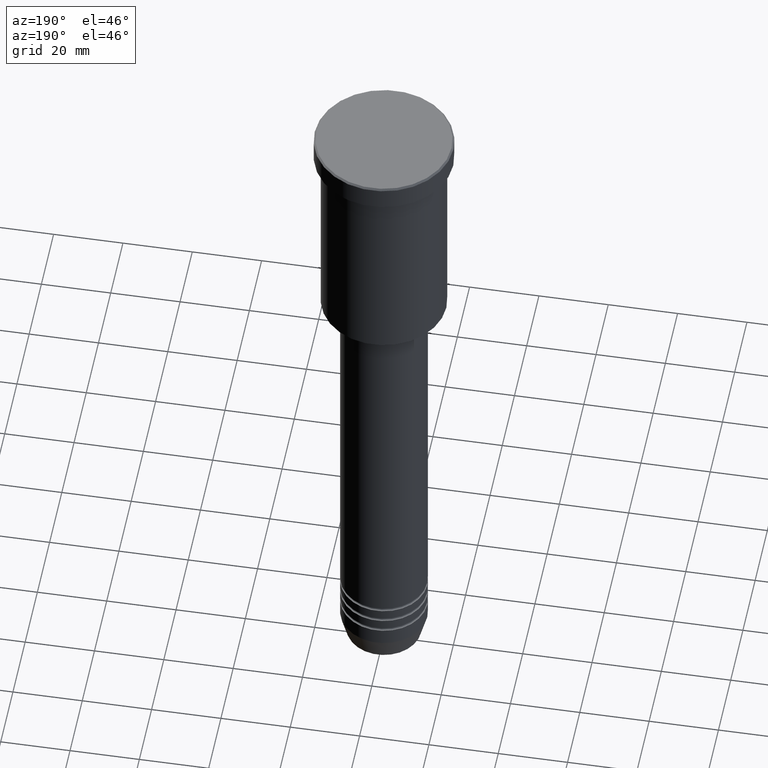
[diagram: clean part render]
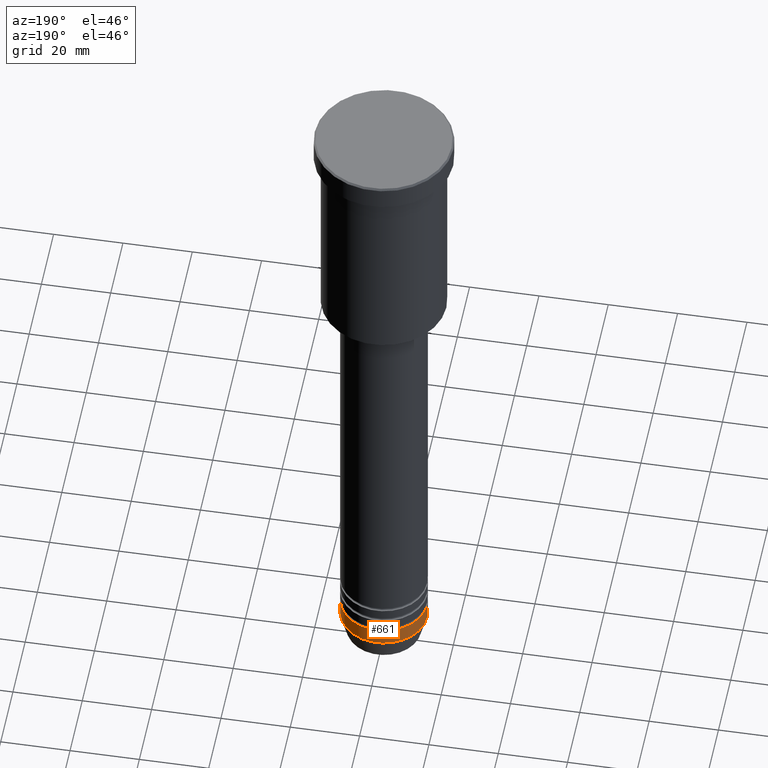
[diagram: same view with one face highlighted and labeled with its STEP entity id]
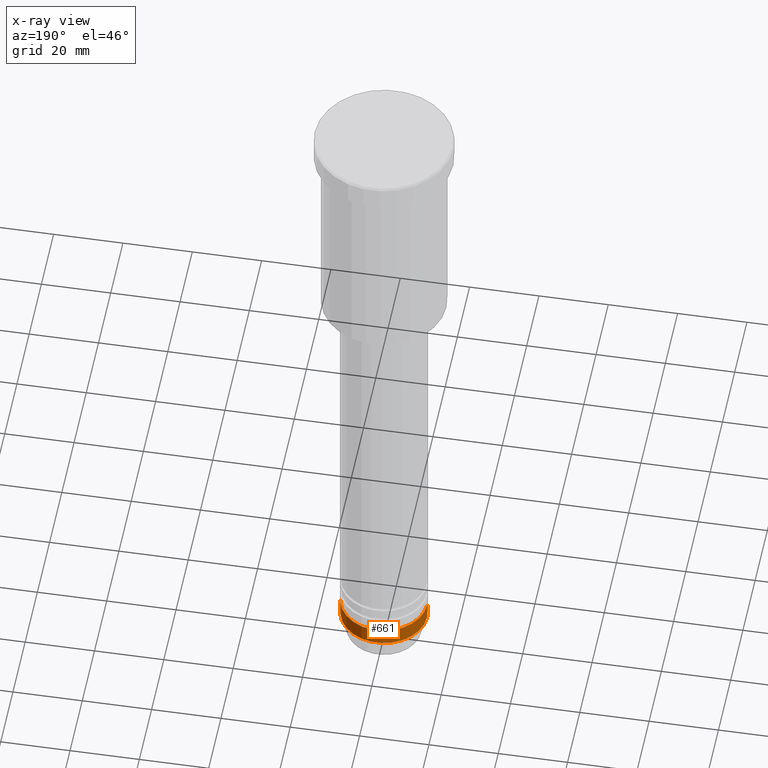
[diagram: x-ray of the same camera — body ghosted, the highlighted face saturated]
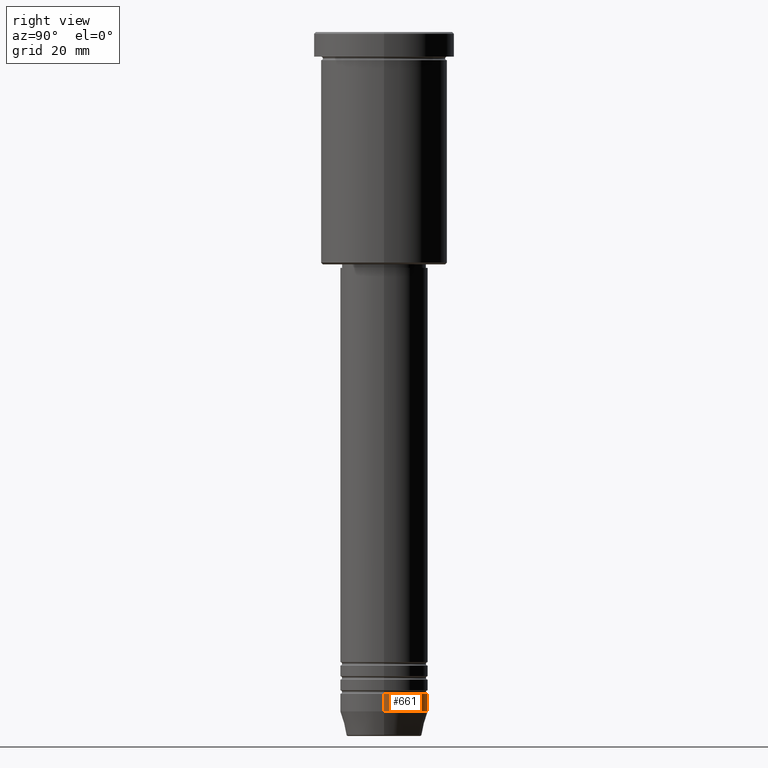
[diagram: same view with one face highlighted and labeled with its STEP entity id]
A machine part, auxiliary view. The second image highlights one B-rep face of the part: STEP entity #661.
The next image is the same camera in x-ray: the body ghosted, the highlighted face saturated — about 0% of this face is hidden behind the body in this view.
A second angle (right view) of the same face is appended — the face is thin or edge-on in the first view.
In plain terms, the highlighted cylindrical surface (partial cylindrical patch) has radius 12.5 mm, axis along (-0, -0, 1).
Its self-contained STEP definition (entity closure, byte-faithful):
#6 = AXIS2_PLACEMENT_3D ( 'NONE', #957, #1109, #1037 ) ;
#7 = DIRECTION ( 'NONE',  ( 1.000000000000000000, 0.000000000000000000, 0.000000000000000000 ) ) ;
#25 = EDGE_CURVE ( 'NONE', #1125, #701, #567, .T. ) ;
#40 = VERTEX_POINT ( 'NONE', #107 ) ;
#107 = CARTESIAN_POINT ( 'NONE',  ( 12.50000000000000000, 0.000000000000000000, -188.0000000000000284 ) ) ;
#111 = CYLINDRICAL_SURFACE ( 'NONE', #6, 12.50000000000000000 ) ;
#116 = FACE_OUTER_BOUND ( 'NONE', #526, .T. ) ;
#178 = DIRECTION ( 'NONE',  ( -0.000000000000000000, -0.000000000000000000, 1.000000000000000000 ) ) ;
#198 = VECTOR ( 'NONE', #232, 1000.000000000000000 ) ;
#232 = DIRECTION ( 'NONE',  ( -0.000000000000000000, -0.000000000000000000, 1.000000000000000000 ) ) ;
#247 = ORIENTED_EDGE ( 'NONE', *, *, #991, .T. ) ;
#451 = DIRECTION ( 'NONE',  ( -0.000000000000000000, -0.000000000000000000, 1.000000000000000000 ) ) ;
#479 = EDGE_CURVE ( 'NONE', #40, #701, #1064, .T. ) ;
#482 = VERTEX_POINT ( 'NONE', #1089 ) ;
#502 = AXIS2_PLACEMENT_3D ( 'NONE', #532, #451, #547 ) ;
#526 = EDGE_LOOP ( 'NONE', ( #247, #1017, #590, #681 ) ) ;
#532 = CARTESIAN_POINT ( 'NONE',  ( 0.000000000000000000, 0.000000000000000000, -193.0000000000000284 ) ) ;
#547 = DIRECTION ( 'NONE',  ( 1.000000000000000000, 0.000000000000000000, 0.000000000000000000 ) ) ;
#567 = LINE ( 'NONE', #668, #870 ) ;
#585 = CARTESIAN_POINT ( 'NONE',  ( -12.50000000000000000, 1.530808498934191521E-15, -188.0000000000000284 ) ) ;
#590 = ORIENTED_EDGE ( 'NONE', *, *, #479, .F. ) ;
#661 = ADVANCED_FACE ( 'NONE', ( #116 ), #111, .T. ) ;
#668 = CARTESIAN_POINT ( 'NONE',  ( -12.50000000000000000, 1.530808498934191521E-15, 0.000000000000000000 ) ) ;
#681 = ORIENTED_EDGE ( 'NONE', *, *, #860, .F. ) ;
#701 = VERTEX_POINT ( 'NONE', #585 ) ;
#860 = EDGE_CURVE ( 'NONE', #482, #40, #1080, .T. ) ;
#870 = VECTOR ( 'NONE', #1127, 1000.000000000000000 ) ;
#957 = CARTESIAN_POINT ( 'NONE',  ( 0.000000000000000000, 0.000000000000000000, 0.000000000000000000 ) ) ;
#984 = CARTESIAN_POINT ( 'NONE',  ( 12.50000000000000000, 0.000000000000000000, 0.000000000000000000 ) ) ;
#991 = EDGE_CURVE ( 'NONE', #482, #1125, #1119, .T. ) ;
#1017 = ORIENTED_EDGE ( 'NONE', *, *, #25, .T. ) ;
#1037 = DIRECTION ( 'NONE',  ( 1.000000000000000000, 0.000000000000000000, 0.000000000000000000 ) ) ;
#1042 = CARTESIAN_POINT ( 'NONE',  ( -12.50000000000000000, 1.530808498934191521E-15, -193.0000000000000284 ) ) ;
#1064 = CIRCLE ( 'NONE', #1138, 12.50000000000000000 ) ;
#1080 = LINE ( 'NONE', #984, #198 ) ;
#1089 = CARTESIAN_POINT ( 'NONE',  ( 12.50000000000000000, 0.000000000000000000, -193.0000000000000284 ) ) ;
#1094 = CARTESIAN_POINT ( 'NONE',  ( 0.000000000000000000, 0.000000000000000000, -188.0000000000000284 ) ) ;
#1109 = DIRECTION ( 'NONE',  ( -0.000000000000000000, -0.000000000000000000, 1.000000000000000000 ) ) ;
#1119 = CIRCLE ( 'NONE', #502, 12.50000000000000000 ) ;
#1125 = VERTEX_POINT ( 'NONE', #1042 ) ;
#1127 = DIRECTION ( 'NONE',  ( -0.000000000000000000, -0.000000000000000000, 1.000000000000000000 ) ) ;
#1138 = AXIS2_PLACEMENT_3D ( 'NONE', #1094, #178, #7 ) ;